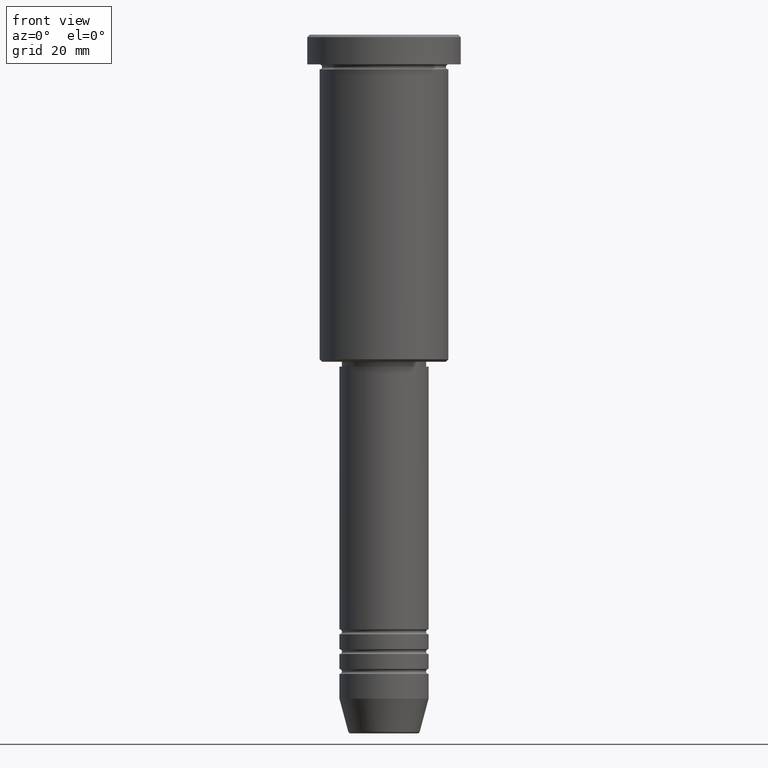
[diagram: clean part render]
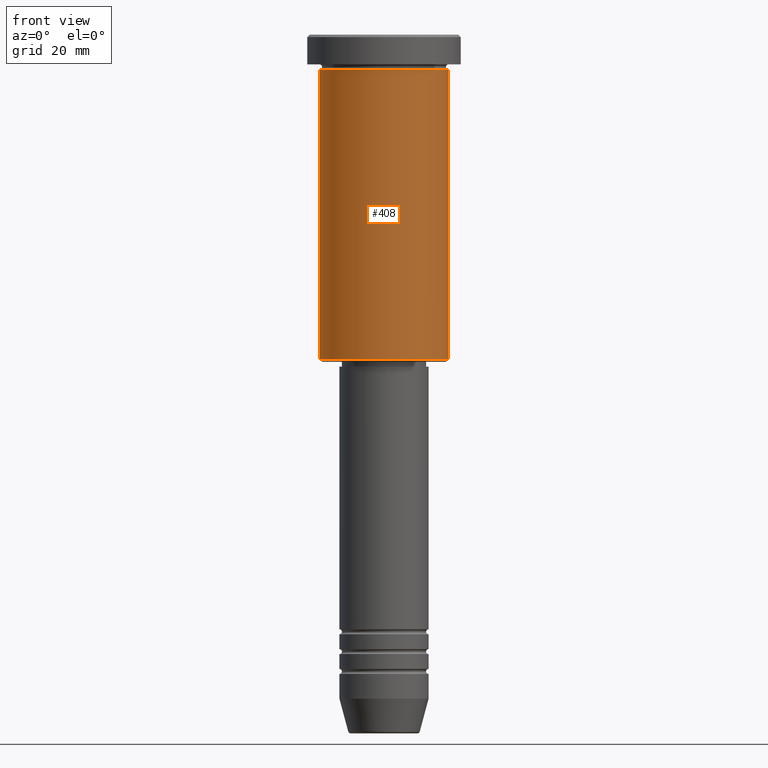
[diagram: same view with one face highlighted and labeled with its STEP entity id]
A machine part, front view. The second image highlights one B-rep face of the part: STEP entity #408.
In plain terms, the highlighted cylindrical surface (partial cylindrical patch) has radius 13 mm, axis along (-0, -0, 1).
Its self-contained STEP definition (entity closure, byte-faithful):
#4 = CARTESIAN_POINT ( 'NONE',  ( -13.00000000000000178, 1.592040838891559293E-15, -65.49999999999997158 ) ) ;
#29 = EDGE_CURVE ( 'NONE', #530, #391, #232, .T. ) ;
#33 = CARTESIAN_POINT ( 'NONE',  ( 0.000000000000000000, 0.000000000000000000, 0.000000000000000000 ) ) ;
#181 = EDGE_LOOP ( 'NONE', ( #1021, #382, #812, #584 ) ) ;
#210 = DIRECTION ( 'NONE',  ( -0.000000000000000000, -0.000000000000000000, 1.000000000000000000 ) ) ;
#232 = CIRCLE ( 'NONE', #1121, 13.00000000000000178 ) ;
#236 = EDGE_CURVE ( 'NONE', #259, #530, #754, .T. ) ;
#259 = VERTEX_POINT ( 'NONE', #4 ) ;
#272 = CARTESIAN_POINT ( 'NONE',  ( -13.00000000000000178, 1.592040838891559293E-15, -6.999999999999995559 ) ) ;
#332 = LINE ( 'NONE', #620, #510 ) ;
#361 = EDGE_CURVE ( 'NONE', #562, #391, #332, .T. ) ;
#373 = DIRECTION ( 'NONE',  ( -0.000000000000000000, -0.000000000000000000, 1.000000000000000000 ) ) ;
#382 = ORIENTED_EDGE ( 'NONE', *, *, #499, .T. ) ;
#391 = VERTEX_POINT ( 'NONE', #430 ) ;
#408 = ADVANCED_FACE ( 'NONE', ( #772 ), #594, .T. ) ;
#430 = CARTESIAN_POINT ( 'NONE',  ( 13.00000000000000178, 0.000000000000000000, -6.999999999999995559 ) ) ;
#439 = AXIS2_PLACEMENT_3D ( 'NONE', #33, #994, #564 ) ;
#473 = DIRECTION ( 'NONE',  ( -0.000000000000000000, -0.000000000000000000, 1.000000000000000000 ) ) ;
#499 = EDGE_CURVE ( 'NONE', #259, #562, #554, .T. ) ;
#510 = VECTOR ( 'NONE', #210, 1000.000000000000000 ) ;
#530 = VERTEX_POINT ( 'NONE', #272 ) ;
#546 = DIRECTION ( 'NONE',  ( 1.000000000000000000, 0.000000000000000000, 0.000000000000000000 ) ) ;
#554 = CIRCLE ( 'NONE', #982, 13.00000000000000178 ) ;
#562 = VERTEX_POINT ( 'NONE', #905 ) ;
#564 = DIRECTION ( 'NONE',  ( 1.000000000000000000, 0.000000000000000000, 0.000000000000000000 ) ) ;
#584 = ORIENTED_EDGE ( 'NONE', *, *, #29, .F. ) ;
#594 = CYLINDRICAL_SURFACE ( 'NONE', #439, 13.00000000000000178 ) ;
#611 = DIRECTION ( 'NONE',  ( -0.000000000000000000, -0.000000000000000000, 1.000000000000000000 ) ) ;
#620 = CARTESIAN_POINT ( 'NONE',  ( 13.00000000000000178, 0.000000000000000000, 0.000000000000000000 ) ) ;
#754 = LINE ( 'NONE', #1083, #855 ) ;
#772 = FACE_OUTER_BOUND ( 'NONE', #181, .T. ) ;
#812 = ORIENTED_EDGE ( 'NONE', *, *, #361, .T. ) ;
#816 = CARTESIAN_POINT ( 'NONE',  ( 0.000000000000000000, 0.000000000000000000, -6.999999999999995559 ) ) ;
#855 = VECTOR ( 'NONE', #473, 1000.000000000000000 ) ;
#905 = CARTESIAN_POINT ( 'NONE',  ( 13.00000000000000178, 0.000000000000000000, -65.49999999999997158 ) ) ;
#924 = CARTESIAN_POINT ( 'NONE',  ( 0.000000000000000000, 0.000000000000000000, -65.49999999999997158 ) ) ;
#968 = DIRECTION ( 'NONE',  ( -1.000000000000000000, 0.000000000000000000, 0.000000000000000000 ) ) ;
#982 = AXIS2_PLACEMENT_3D ( 'NONE', #924, #611, #968 ) ;
#994 = DIRECTION ( 'NONE',  ( -0.000000000000000000, -0.000000000000000000, 1.000000000000000000 ) ) ;
#1021 = ORIENTED_EDGE ( 'NONE', *, *, #236, .F. ) ;
#1083 = CARTESIAN_POINT ( 'NONE',  ( -13.00000000000000178, 1.592040838891559293E-15, 0.000000000000000000 ) ) ;
#1121 = AXIS2_PLACEMENT_3D ( 'NONE', #816, #373, #546 ) ;